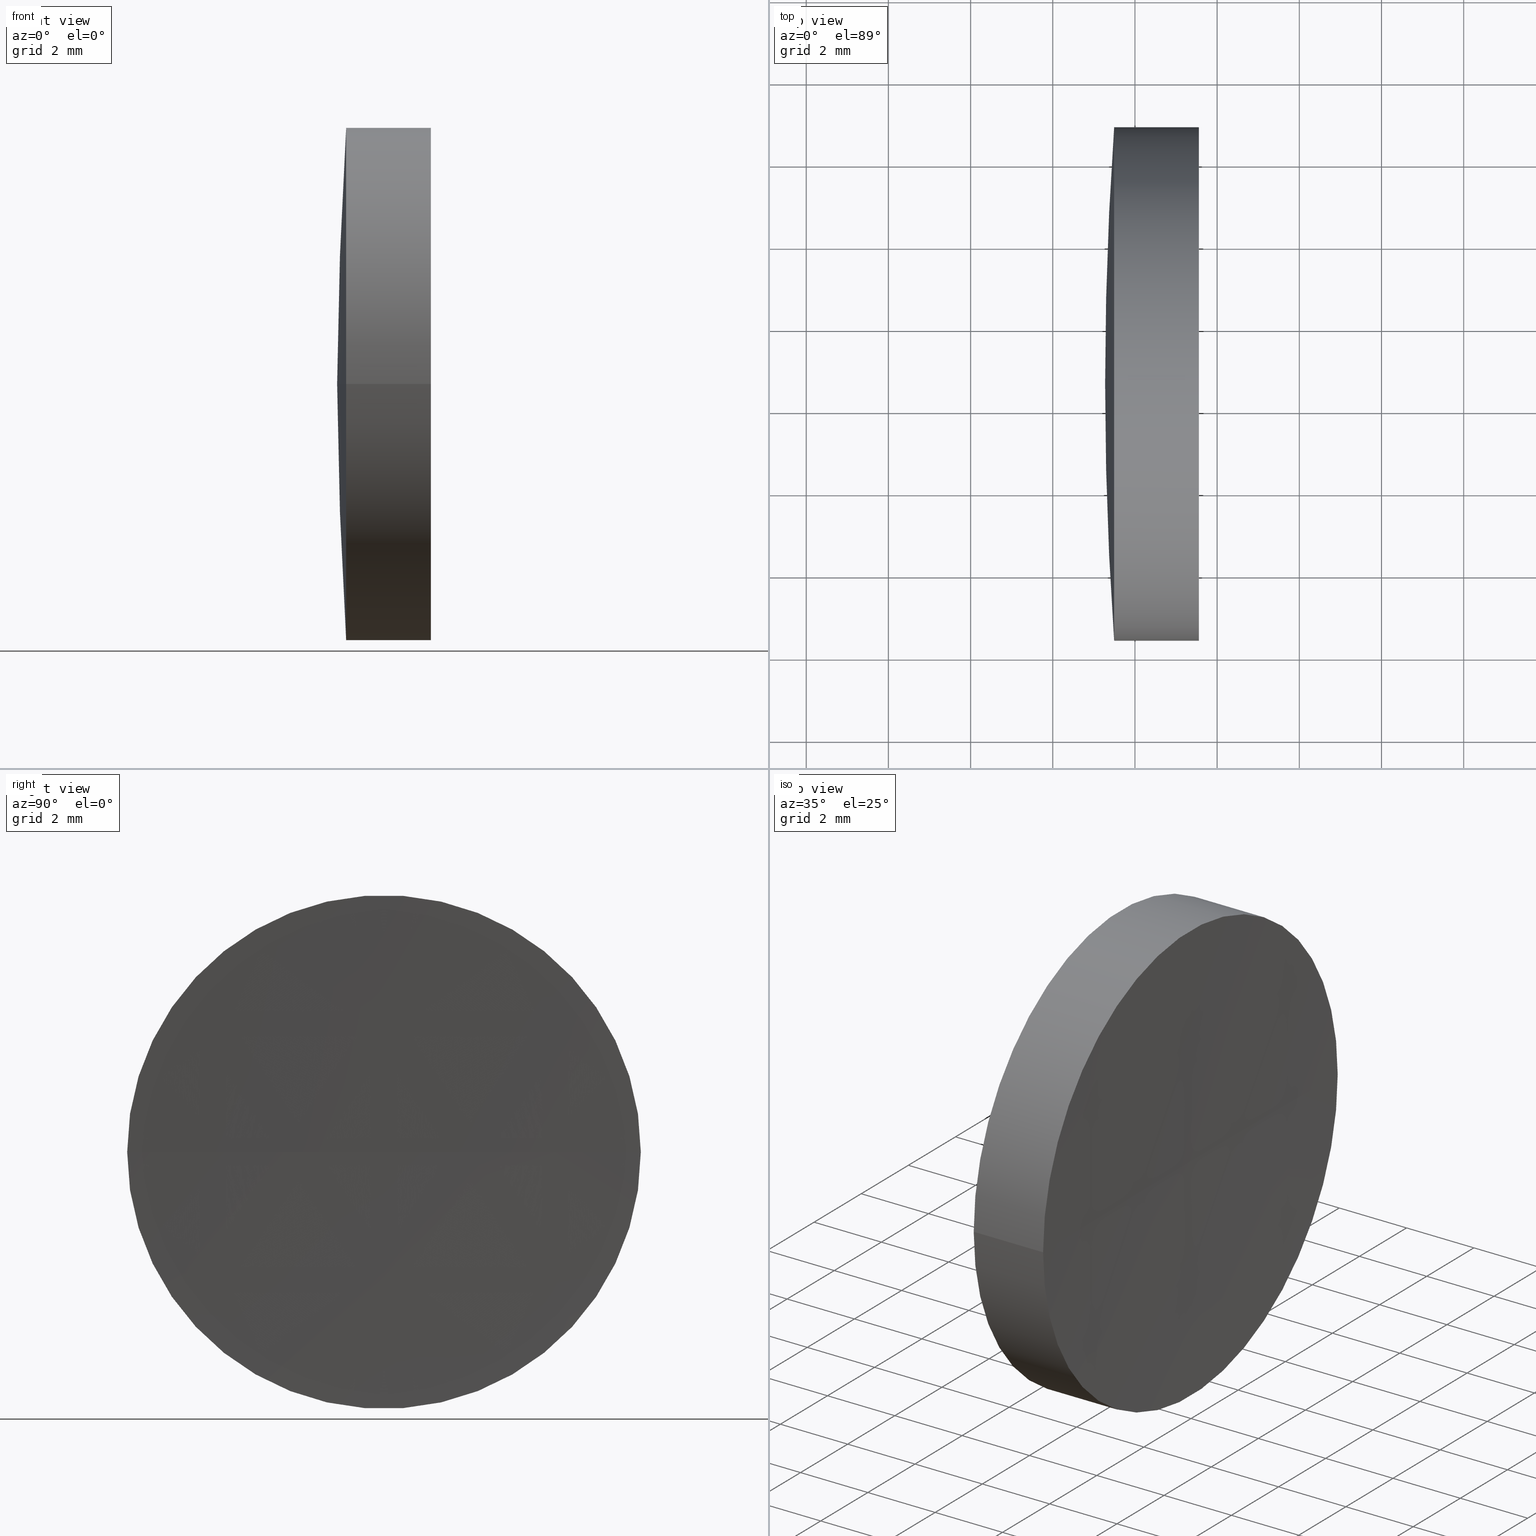
[diagram: canonical four-view strip — front | top / right | iso, engineering-drawing reading convention]
A machine part, canonical four-view strip (front | top / right | iso — engineering-drawing reading convention). The complete STEP part file that produces these views, byte-faithful:
ISO-10303-21;
HEADER;
FILE_DESCRIPTION (( 'STEP AP214' ),
    '1' );
FILE_NAME ('150003.STEP',
    '2019-07-04T02:38:42',
    ( '' ),
    ( '' ),
    'SwSTEP 2.0',
    'SolidWorks 2016',
    '' );
FILE_SCHEMA (( 'AUTOMOTIVE_DESIGN' ));
ENDSEC;

DATA;
#1 = ORIENTED_EDGE ( 'NONE', *, *, #104, .F. ) ;
#2 = AXIS2_PLACEMENT_3D ( 'NONE', #74, #187, #85 ) ;
#3 = VERTEX_POINT ( 'NONE', #95 ) ;
#4 = EDGE_CURVE ( 'NONE', #125, #154, #127, .T. ) ;
#5 = ORIENTED_EDGE ( 'NONE', *, *, #119, .T. ) ;
#6 = EDGE_LOOP ( 'NONE', ( #184, #168, #107 ) ) ;
#7 = DIRECTION ( 'NONE',  ( -1.000000000000000000, -6.937607244762875000E-016, -0.0000000000000000000 ) ) ;
#8 = AXIS2_PLACEMENT_3D ( 'NONE', #192, #60, #103 ) ;
#9 = CARTESIAN_POINT ( 'NONE',  ( 57.97224564898159100, 26.35842023547018400, 0.0000000000000000000 ) ) ;
#10 = LINE ( 'NONE', #69, #146 ) ;
#11 = DIRECTION ( 'NONE',  ( 0.0000000000000000000, 1.000000000000000000, 1.224646799147353000E-016 ) ) ;
#12 = AXIS2_PLACEMENT_3D ( 'NONE', #160, #147, #156 ) ;
#13 = DIRECTION ( 'NONE',  ( -0.0000000000000000000, 0.0000000000000000000, -1.000000000000000000 ) ) ;
#14 = CARTESIAN_POINT ( 'NONE',  ( 63.55530463170244800, 32.60842023547017000, 0.0000000000000000000 ) ) ;
#15 = DIRECTION ( 'NONE',  ( 0.0000000000000000000, -1.000000000000000000, 0.0000000000000000000 ) ) ;
#16 = DIRECTION ( 'NONE',  ( -0.0000000000000000000, 0.0000000000000000000, 1.000000000000000000 ) ) ;
#17 = EDGE_CURVE ( 'NONE', #154, #36, #68, .T. ) ;
#18 = ORIENTED_EDGE ( 'NONE', *, *, #170, .T. ) ;
#19 = CYLINDRICAL_SURFACE ( 'NONE', #126, 6.249999999999977800 ) ;
#20 = AXIS2_PLACEMENT_3D ( 'NONE', #99, #13, #105 ) ;
#21 = SHAPE_DEFINITION_REPRESENTATION ( #33, #124 ) ;
#22 = ORIENTED_EDGE ( 'NONE', *, *, #40, .T. ) ;
#23 = DIRECTION ( 'NONE',  ( -6.938893903907226400E-016, 1.000000000000000000, 0.0000000000000000000 ) ) ;
#24 = EDGE_LOOP ( 'NONE', ( #191, #38, #1 ) ) ;
#25 = EDGE_CURVE ( 'NONE', #154, #3, #52, .T. ) ;
#26 = FILL_AREA_STYLE ('',( #47 ) ) ;
#27 = ADVANCED_FACE ( 'NONE', ( #152 ), #158, .T. ) ;
#28 = DIRECTION ( 'NONE',  ( 1.110223024625159900E-015, -1.000000000000000000, 0.0000000000000000000 ) ) ;
#29 = FILL_AREA_STYLE ('',( #122 ) ) ;
#30 = CARTESIAN_POINT ( 'NONE',  ( 61.49363409550321100, 26.35842023547024800, -7.654042494670787000E-016 ) ) ;
#31 = PRODUCT_DEFINITION_FORMATION_WITH_SPECIFIED_SOURCE ( '�κ�', '', #98, .NOT_KNOWN. ) ;
#32 = COLOUR_RGB ( '',1.000000000000000000, 1.000000000000000000, 1.000000000000000000 ) ;
#33 = PRODUCT_DEFINITION_SHAPE ( 'NONE', 'NONE',  #34 ) ;
#34 = PRODUCT_DEFINITION ( 'δ֪', '', #31, #155 ) ;
#35 = ORIENTED_EDGE ( 'NONE', *, *, #17, .F. ) ;
#36 = VERTEX_POINT ( 'NONE', #145 ) ;
#37 = AXIS2_PLACEMENT_3D ( 'NONE', #132, #16, #45 ) ;
#38 = ORIENTED_EDGE ( 'NONE', *, *, #25, .T. ) ;
#39 = EDGE_LOOP ( 'NONE', ( #143, #140, #5 ) ) ;
#40 = EDGE_CURVE ( 'NONE', #123, #36, #10, .T. ) ;
#41 = CARTESIAN_POINT ( 'NONE',  ( 57.97224564898158400, 32.60842023547016300, 0.0000000000000000000 ) ) ;
#42 = DIRECTION ( 'NONE',  ( -8.496118506040342700E-032, 1.224646799147353200E-016, -1.000000000000000000 ) ) ;
#43 = ADVANCED_FACE ( 'NONE', ( #55 ), #128, .F. ) ;
#44 = CARTESIAN_POINT ( 'NONE',  ( 63.47391062131718800, 32.60842023547004900, 0.0000000000000000000 ) ) ;
#45 = DIRECTION ( 'NONE',  ( 1.000000000000000000, 0.0000000000000000000, 0.0000000000000000000 ) ) ;
#46 = SURFACE_SIDE_STYLE ('',( #81 ) ) ;
#47 = FILL_AREA_STYLE_COLOUR ( '', #32 ) ;
#48 =( LENGTH_UNIT ( ) NAMED_UNIT ( * ) SI_UNIT ( .MILLI., .METRE. ) );
#49 = CIRCLE ( 'NONE', #90, 240.0000000000000900 ) ;
#50 = CARTESIAN_POINT ( 'NONE',  ( 57.97224564898158400, 32.60842023547016300, 0.0000000000000000000 ) ) ;
#51 = AXIS2_PLACEMENT_3D ( 'NONE', #14, #136, #15 ) ;
#52 = CIRCLE ( 'NONE', #100, 89.00000000000001400 ) ;
#53 = SPHERICAL_SURFACE ( 'NONE', #110, 89.00000000000001400 ) ;
#54 = ORIENTED_EDGE ( 'NONE', *, *, #96, .F. ) ;
#55 = FACE_OUTER_BOUND ( 'NONE', #39, .T. ) ;
#56 = ADVANCED_FACE ( 'NONE', ( #84 ), #53, .T. ) ;
#57 = CARTESIAN_POINT ( 'NONE',  ( 63.55530463170246200, 38.85842023547034100, 0.0000000000000000000 ) ) ;
#58 = DIRECTION ( 'NONE',  ( 1.110223024625160500E-015, -1.000000000000000000, 0.0000000000000000000 ) ) ;
#59 = DIRECTION ( 'NONE',  ( 1.000000000000000000, 0.0000000000000000000, 0.0000000000000000000 ) ) ;
#60 = DIRECTION ( 'NONE',  ( 0.0000000000000000000, -0.0000000000000000000, 1.000000000000000000 ) ) ;
#61 = CLOSED_SHELL ( 'NONE', ( #27, #117, #56, #159, #43, #186 ) ) ;
#62 = APPLICATION_PROTOCOL_DEFINITION ( 'draft international standard', 'automotive_design', 1998, #89 ) ;
#63 = FACE_OUTER_BOUND ( 'NONE', #92, .T. ) ;
#64 = STYLED_ITEM ( 'NONE', ( #101 ), #130 ) ;
#65 = DIRECTION ( 'NONE',  ( 0.0000000000000000000, 0.0000000000000000000, -1.000000000000000000 ) ) ;
#66 = AXIS2_PLACEMENT_3D ( 'NONE', #133, #150, #176 ) ;
#67 = PRESENTATION_STYLE_ASSIGNMENT (( #165 ) ) ;
#68 = CIRCLE ( 'NONE', #12, 6.249999999999981300 ) ;
#69 = CARTESIAN_POINT ( 'NONE',  ( 57.97224564898157700, 38.85842023547014200, 7.654042494670930000E-016 ) ) ;
#70 = CARTESIAN_POINT ( 'NONE',  ( 303.4739106213172600, 32.60842023547020600, 0.0000000000000000000 ) ) ;
#71 = APPLICATION_PROTOCOL_DEFINITION ( 'draft international standard', 'automotive_design', 1998, #121 ) ;
#72 =( NAMED_UNIT ( * ) SI_UNIT ( $, .STERADIAN. ) SOLID_ANGLE_UNIT ( ) );
#73 = MECHANICAL_DESIGN_GEOMETRIC_PRESENTATION_REPRESENTATION (  '', ( #64 ), #164 ) ;
#74 = CARTESIAN_POINT ( 'NONE',  ( 303.4739106213172600, 32.60842023547020600, 0.0000000000000000000 ) ) ;
#75 =( LENGTH_UNIT ( ) NAMED_UNIT ( * ) SI_UNIT ( .MILLI., .METRE. ) );
#76 = ORIENTED_EDGE ( 'NONE', *, *, #40, .F. ) ;
#77 = ORIENTED_EDGE ( 'NONE', *, *, #4, .F. ) ;
#78 = CIRCLE ( 'NONE', #189, 6.249999999999981300 ) ;
#79 = UNCERTAINTY_MEASURE_WITH_UNIT (LENGTH_MEASURE( 1.000000000000000100E-005 ), #75, 'distance_accuracy_value', 'NONE');
#80 = EDGE_CURVE ( 'NONE', #125, #109, #49, .T. ) ;
#81 = SURFACE_STYLE_FILL_AREA ( #29 ) ;
#82 = VECTOR ( 'NONE', #116, 1000.000000000000000 ) ;
#83 = DIRECTION ( 'NONE',  ( 0.0000000000000000000, 1.000000000000000000, 1.224646799147353000E-016 ) ) ;
#84 = FACE_OUTER_BOUND ( 'NONE', #24, .T. ) ;
#85 = DIRECTION ( 'NONE',  ( -6.938893903907226400E-016, 1.000000000000000000, 0.0000000000000000000 ) ) ;
#86 = CARTESIAN_POINT ( 'NONE',  ( 0.0000000000000000000, 0.0000000000000000000, 0.0000000000000000000 ) ) ;
#87 =( NAMED_UNIT ( * ) PLANE_ANGLE_UNIT ( ) SI_UNIT ( $, .RADIAN. ) );
#88 = PRESENTATION_LAYER_ASSIGNMENT (  '', '', ( #64 ) ) ;
#89 = APPLICATION_CONTEXT ( 'automotive_design' ) ;
#90 = AXIS2_PLACEMENT_3D ( 'NONE', #183, #112, #11 ) ;
#91 = FACE_OUTER_BOUND ( 'NONE', #181, .T. ) ;
#92 = EDGE_LOOP ( 'NONE', ( #172, #115, #120 ) ) ;
#93 =( GEOMETRIC_REPRESENTATION_CONTEXT ( 3 ) GLOBAL_UNCERTAINTY_ASSIGNED_CONTEXT ( ( #113 ) ) GLOBAL_UNIT_ASSIGNED_CONTEXT ( ( #188, #138, #161 ) ) REPRESENTATION_CONTEXT ( 'NONE', 'WORKASPACE' ) );
#94 = SURFACE_STYLE_FILL_AREA ( #26 ) ;
#95 = CARTESIAN_POINT ( 'NONE',  ( 61.27391062131722100, 32.60842023547011300, 0.0000000000000000000 ) ) ;
#96 = EDGE_CURVE ( 'NONE', #36, #154, #78, .T. ) ;
#97 = DIRECTION ( 'NONE',  ( 1.110223024625160500E-015, -1.000000000000000000, 0.0000000000000000000 ) ) ;
#98 = PRODUCT ( '150003', '150003', '', ( #153 ) ) ;
#99 = CARTESIAN_POINT ( 'NONE',  ( 150.2739106213172400, 32.60842023547017000, 0.0000000000000000000 ) ) ;
#100 = AXIS2_PLACEMENT_3D ( 'NONE', #131, #42, #83 ) ;
#101 = PRESENTATION_STYLE_ASSIGNMENT (( #163 ) ) ;
#102 = DIRECTION ( 'NONE',  ( -1.000000000000000000, -6.937607244762875000E-016, -0.0000000000000000000 ) ) ;
#103 = DIRECTION ( 'NONE',  ( 1.000000000000000000, 0.0000000000000000000, 0.0000000000000000000 ) ) ;
#104 = EDGE_CURVE ( 'NONE', #36, #3, #169, .T. ) ;
#105 = DIRECTION ( 'NONE',  ( -6.237208003512114900E-016, 1.000000000000000000, 0.0000000000000000000 ) ) ;
#106 = DIRECTION ( 'NONE',  ( 0.0000000000000000000, 0.0000000000000000000, 1.000000000000000000 ) ) ;
#107 = ORIENTED_EDGE ( 'NONE', *, *, #119, .F. ) ;
#108 = ORIENTED_EDGE ( 'NONE', *, *, #129, .T. ) ;
#109 = VERTEX_POINT ( 'NONE', #44 ) ;
#110 = AXIS2_PLACEMENT_3D ( 'NONE', #148, #180, #118 ) ;
#111 = STYLED_ITEM ( 'NONE', ( #67 ), #124 ) ;
#112 = DIRECTION ( 'NONE',  ( -8.496118506040342700E-032, 1.224646799147353200E-016, -1.000000000000000000 ) ) ;
#113 = UNCERTAINTY_MEASURE_WITH_UNIT (LENGTH_MEASURE( 1.000000000000000100E-005 ), #188, 'distance_accuracy_value', 'NONE');
#114 = SPHERICAL_SURFACE ( 'NONE', #20, 89.00000000000001400 ) ;
#115 = ORIENTED_EDGE ( 'NONE', *, *, #17, .T. ) ;
#116 = DIRECTION ( 'NONE',  ( -1.000000000000000000, -6.937607244762875000E-016, -0.0000000000000000000 ) ) ;
#117 = ADVANCED_FACE ( 'NONE', ( #190 ), #175, .F. ) ;
#118 = DIRECTION ( 'NONE',  ( -6.237208003512114900E-016, 1.000000000000000000, 0.0000000000000000000 ) ) ;
#119 = EDGE_CURVE ( 'NONE', #123, #109, #157, .T. ) ;
#120 = ORIENTED_EDGE ( 'NONE', *, *, #104, .T. ) ;
#121 = APPLICATION_CONTEXT ( 'automotive_design' ) ;
#122 = FILL_AREA_STYLE_COLOUR ( '', #135 ) ;
#123 = VERTEX_POINT ( 'NONE', #57 ) ;
#124 = ADVANCED_BREP_SHAPE_REPRESENTATION ( '150003', ( #130, #167 ), #93 ) ;
#125 = VERTEX_POINT ( 'NONE', #134 ) ;
#126 = AXIS2_PLACEMENT_3D ( 'NONE', #50, #102, #58 ) ;
#127 = LINE ( 'NONE', #9, #82 ) ;
#128 = SPHERICAL_SURFACE ( 'NONE', #144, 240.0000000000000600 ) ;
#129 = EDGE_CURVE ( 'NONE', #125, #123, #142, .T. ) ;
#130 = MANIFOLD_SOLID_BREP ( '��ת1', #61 ) ;
#131 = CARTESIAN_POINT ( 'NONE',  ( 150.2739106213172400, 32.60842023547017000, 0.0000000000000000000 ) ) ;
#132 = CARTESIAN_POINT ( 'NONE',  ( 150.2739106213172400, 32.60842023547017000, 0.0000000000000000000 ) ) ;
#133 = CARTESIAN_POINT ( 'NONE',  ( 63.55530463170244800, 32.60842023547017000, 0.0000000000000000000 ) ) ;
#134 = CARTESIAN_POINT ( 'NONE',  ( 63.55530463170246200, 26.35842023546987200, -7.654042494671163700E-016 ) ) ;
#135 = COLOUR_RGB ( '',1.000000000000000000, 1.000000000000000000, 1.000000000000000000 ) ;
#136 = DIRECTION ( 'NONE',  ( -1.000000000000000000, -6.937607244762875000E-016, -0.0000000000000000000 ) ) ;
#137 = PRESENTATION_LAYER_ASSIGNMENT (  '', '', ( #111 ) ) ;
#138 =( NAMED_UNIT ( * ) PLANE_ANGLE_UNIT ( ) SI_UNIT ( $, .RADIAN. ) );
#139 = CIRCLE ( 'NONE', #66, 6.249999999999974200 ) ;
#140 = ORIENTED_EDGE ( 'NONE', *, *, #170, .F. ) ;
#141 =( GEOMETRIC_REPRESENTATION_CONTEXT ( 3 ) GLOBAL_UNCERTAINTY_ASSIGNED_CONTEXT ( ( #79 ) ) GLOBAL_UNIT_ASSIGNED_CONTEXT ( ( #75, #87, #72 ) ) REPRESENTATION_CONTEXT ( 'NONE', 'WORKASPACE' ) );
#142 = CIRCLE ( 'NONE', #51, 6.249999999999974200 ) ;
#143 = ORIENTED_EDGE ( 'NONE', *, *, #80, .F. ) ;
#144 = AXIS2_PLACEMENT_3D ( 'NONE', #70, #65, #23 ) ;
#145 = CARTESIAN_POINT ( 'NONE',  ( 61.49363409550321100, 38.85842023547002100, 0.0000000000000000000 ) ) ;
#146 = VECTOR ( 'NONE', #182, 1000.000000000000000 ) ;
#147 = DIRECTION ( 'NONE',  ( -1.000000000000000000, -6.937607244762875000E-016, -0.0000000000000000000 ) ) ;
#148 = CARTESIAN_POINT ( 'NONE',  ( 150.2739106213172400, 32.60842023547017000, 0.0000000000000000000 ) ) ;
#149 = DIRECTION ( 'NONE',  ( -1.000000000000000000, -6.937607244762875000E-016, -0.0000000000000000000 ) ) ;
#150 = DIRECTION ( 'NONE',  ( -1.000000000000000000, -6.937607244762875000E-016, -0.0000000000000000000 ) ) ;
#151 = CARTESIAN_POINT ( 'NONE',  ( 61.49363409550322500, 32.60842023547016300, 0.0000000000000000000 ) ) ;
#152 = FACE_OUTER_BOUND ( 'NONE', #166, .T. ) ;
#153 = PRODUCT_CONTEXT ( 'NONE', #121, 'mechanical' ) ;
#154 = VERTEX_POINT ( 'NONE', #30 ) ;
#155 = PRODUCT_DEFINITION_CONTEXT ( 'detailed design', #89, 'design' ) ;
#156 = DIRECTION ( 'NONE',  ( 1.110223024625159900E-015, -1.000000000000000000, 0.0000000000000000000 ) ) ;
#157 = CIRCLE ( 'NONE', #8, 240.0000000000001100 ) ;
#158 = CYLINDRICAL_SURFACE ( 'NONE', #173, 6.249999999999977800 ) ;
#159 = ADVANCED_FACE ( 'NONE', ( #63 ), #114, .T. ) ;
#160 = CARTESIAN_POINT ( 'NONE',  ( 61.49363409550322500, 32.60842023547016300, 0.0000000000000000000 ) ) ;
#161 =( NAMED_UNIT ( * ) SI_UNIT ( $, .STERADIAN. ) SOLID_ANGLE_UNIT ( ) );
#162 =( NAMED_UNIT ( * ) SI_UNIT ( $, .STERADIAN. ) SOLID_ANGLE_UNIT ( ) );
#163 = SURFACE_STYLE_USAGE ( .BOTH. , #185 ) ;
#164 =( GEOMETRIC_REPRESENTATION_CONTEXT ( 3 ) GLOBAL_UNCERTAINTY_ASSIGNED_CONTEXT ( ( #178 ) ) GLOBAL_UNIT_ASSIGNED_CONTEXT ( ( #48, #174, #162 ) ) REPRESENTATION_CONTEXT ( 'NONE', 'WORKASPACE' ) );
#165 = SURFACE_STYLE_USAGE ( .BOTH. , #46 ) ;
#166 = EDGE_LOOP ( 'NONE', ( #108, #22, #35, #77 ) ) ;
#167 = AXIS2_PLACEMENT_3D ( 'NONE', #86, #106, #59 ) ;
#168 = ORIENTED_EDGE ( 'NONE', *, *, #80, .T. ) ;
#169 = CIRCLE ( 'NONE', #37, 89.00000000000002800 ) ;
#170 = EDGE_CURVE ( 'NONE', #123, #125, #139, .T. ) ;
#171 = PRODUCT_RELATED_PRODUCT_CATEGORY ( 'part', '', ( #98 ) ) ;
#172 = ORIENTED_EDGE ( 'NONE', *, *, #25, .F. ) ;
#173 = AXIS2_PLACEMENT_3D ( 'NONE', #41, #7, #97 ) ;
#174 =( NAMED_UNIT ( * ) PLANE_ANGLE_UNIT ( ) SI_UNIT ( $, .RADIAN. ) );
#175 = SPHERICAL_SURFACE ( 'NONE', #2, 240.0000000000000600 ) ;
#176 = DIRECTION ( 'NONE',  ( 0.0000000000000000000, -1.000000000000000000, 0.0000000000000000000 ) ) ;
#177 = ORIENTED_EDGE ( 'NONE', *, *, #4, .T. ) ;
#178 = UNCERTAINTY_MEASURE_WITH_UNIT (LENGTH_MEASURE( 1.000000000000000100E-005 ), #48, 'distance_accuracy_value', 'NONE');
#179 = MECHANICAL_DESIGN_GEOMETRIC_PRESENTATION_REPRESENTATION (  '', ( #111 ), #141 ) ;
#180 = DIRECTION ( 'NONE',  ( -0.0000000000000000000, 0.0000000000000000000, -1.000000000000000000 ) ) ;
#181 = EDGE_LOOP ( 'NONE', ( #76, #18, #177, #54 ) ) ;
#182 = DIRECTION ( 'NONE',  ( -1.000000000000000000, -6.937607244762875000E-016, -0.0000000000000000000 ) ) ;
#183 = CARTESIAN_POINT ( 'NONE',  ( 303.4739106213172600, 32.60842023547020600, 0.0000000000000000000 ) ) ;
#184 = ORIENTED_EDGE ( 'NONE', *, *, #129, .F. ) ;
#185 = SURFACE_SIDE_STYLE ('',( #94 ) ) ;
#186 = ADVANCED_FACE ( 'NONE', ( #91 ), #19, .T. ) ;
#187 = DIRECTION ( 'NONE',  ( 0.0000000000000000000, 0.0000000000000000000, -1.000000000000000000 ) ) ;
#188 =( LENGTH_UNIT ( ) NAMED_UNIT ( * ) SI_UNIT ( .MILLI., .METRE. ) );
#189 = AXIS2_PLACEMENT_3D ( 'NONE', #151, #149, #28 ) ;
#190 = FACE_OUTER_BOUND ( 'NONE', #6, .T. ) ;
#191 = ORIENTED_EDGE ( 'NONE', *, *, #96, .T. ) ;
#192 = CARTESIAN_POINT ( 'NONE',  ( 303.4739106213172600, 32.60842023547020600, 0.0000000000000000000 ) ) ;
ENDSEC;
END-ISO-10303-21;
